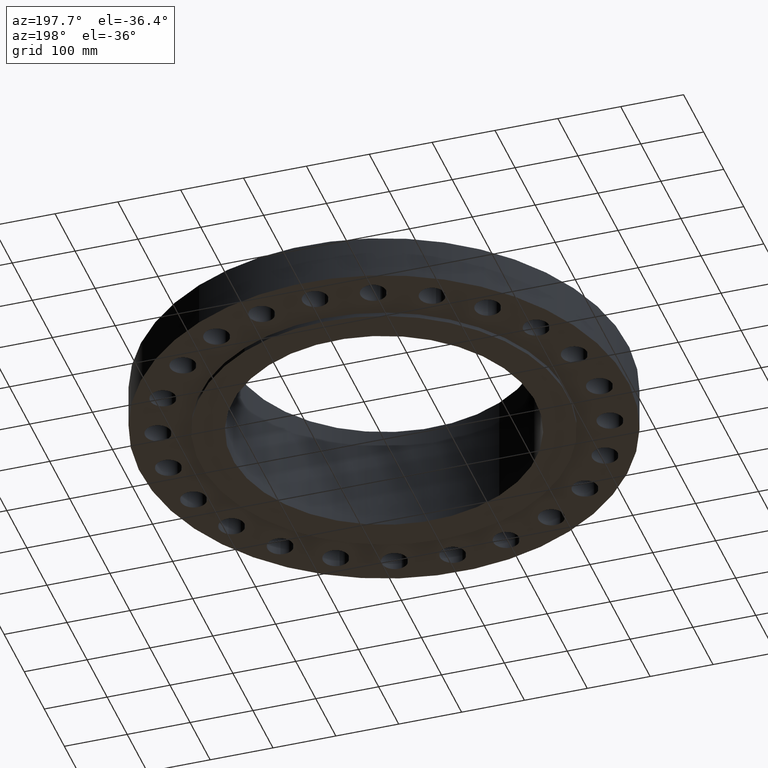
[diagram: clean part render]
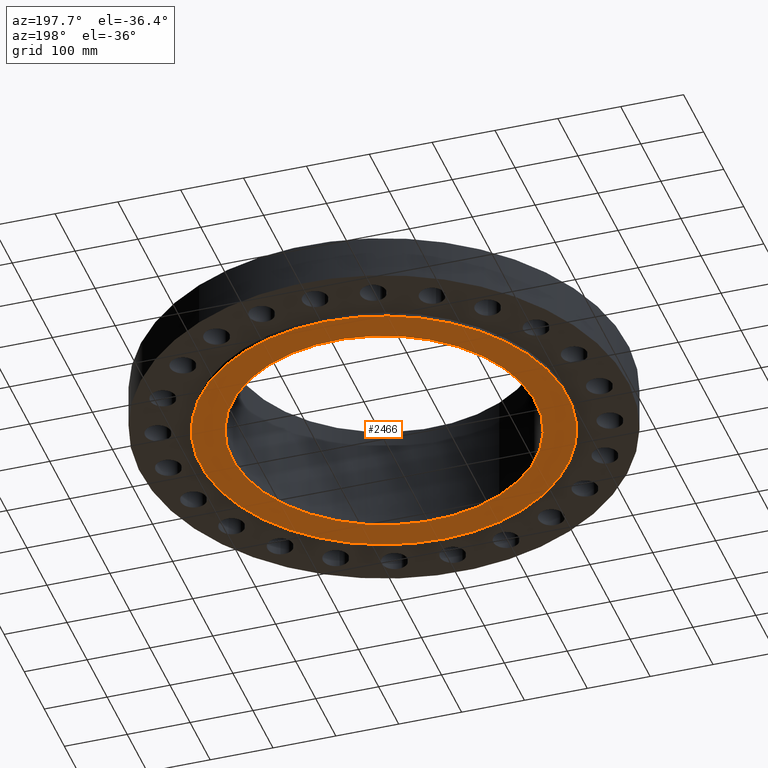
[diagram: same view with one face highlighted and labeled with its STEP entity id]
A machine part, auxiliary view. The second image highlights one B-rep face of the part: STEP entity #2466.
In plain terms, the highlighted planar face has unit normal (0, 0, -1).
Its self-contained STEP definition (entity closure, byte-faithful):
#1143=AXIS2_PLACEMENT_3D('Circle Axis2P3D',#1141,#1142,$) ;
#1181=AXIS2_PLACEMENT_3D('Circle Axis2P3D',#1179,#1180,$) ;
#2442=AXIS2_PLACEMENT_3D('Plane Axis2P3D',#2439,#2440,#2441) ;
#2450=AXIS2_PLACEMENT_3D('Circle Axis2P3D',#2448,#2449,$) ;
#2459=AXIS2_PLACEMENT_3D('Circle Axis2P3D',#2457,#2458,$) ;
#1141=CARTESIAN_POINT('Axis2P3D Location',(0.,0.,-0.249999999984)) ;
#1145=CARTESIAN_POINT('Vertex',(5.51339369392,10.0921994617,-0.250000000001)) ;
#1147=CARTESIAN_POINT('Vertex',(-5.51339369392,-10.0921994618,-0.250000000001)) ;
#1179=CARTESIAN_POINT('Axis2P3D Location',(0.,0.,-0.250000000001)) ;
#2439=CARTESIAN_POINT('Axis2P3D Location',(0.,9.50000000004,-0.250000000001)) ;
#2448=CARTESIAN_POINT('Axis2P3D Location',(3.08509823112E-011,-6.18899507321E-012,-0.250000000001)) ;
#2452=CARTESIAN_POINT('Vertex',(4.55454261676,8.33703433799,-0.250000000001)) ;
#2454=CARTESIAN_POINT('Vertex',(-4.55454261676,-8.33703433799,-0.249999999984)) ;
#2457=CARTESIAN_POINT('Axis2P3D Location',(-3.35689481461E-015,1.0665973791E-011,-0.250000000001)) ;
#1142=DIRECTION('Axis2P3D Direction',(0.,0.,-0.0393700787402)) ;
#1180=DIRECTION('Axis2P3D Direction',(0.,0.,-0.0393700787402)) ;
#2440=DIRECTION('Axis2P3D Direction',(0.,0.,-0.0393700787402)) ;
#2441=DIRECTION('Axis2P3D XDirection',(0.0393700787402,0.,0.)) ;
#2449=DIRECTION('Axis2P3D Direction',(0.,0.,-0.0393700787402)) ;
#2458=DIRECTION('Axis2P3D Direction',(0.,0.,-0.0393700787402)) ;
#2445=ORIENTED_EDGE('',*,*,#1183,.T.) ;
#2446=ORIENTED_EDGE('',*,*,#1149,.T.) ;
#2463=ORIENTED_EDGE('',*,*,#2456,.F.) ;
#2464=ORIENTED_EDGE('',*,*,#2461,.F.) ;
#2465=FACE_BOUND('',#2462,.T.) ;
#2466=ADVANCED_FACE('PartBody',(#2447,#2465),#2443,.T.) ;
#1144=CIRCLE('generated circle',#1143,11.5) ;
#1182=CIRCLE('generated circle',#1181,11.5) ;
#2451=CIRCLE('generated circle',#2450,9.50000000004) ;
#2460=CIRCLE('generated circle',#2459,9.50000000004) ;
#1149=EDGE_CURVE('',#1146,#1148,#1144,.T.) ;
#1183=EDGE_CURVE('',#1148,#1146,#1182,.T.) ;
#2456=EDGE_CURVE('',#2453,#2455,#2451,.T.) ;
#2461=EDGE_CURVE('',#2455,#2453,#2460,.T.) ;
#2444=EDGE_LOOP('',(#2445,#2446)) ;
#2462=EDGE_LOOP('',(#2463,#2464)) ;
#2447=FACE_OUTER_BOUND('',#2444,.T.) ;
#2443=PLANE('',#2442) ;
#1146=VERTEX_POINT('',#1145) ;
#1148=VERTEX_POINT('',#1147) ;
#2453=VERTEX_POINT('',#2452) ;
#2455=VERTEX_POINT('',#2454) ;